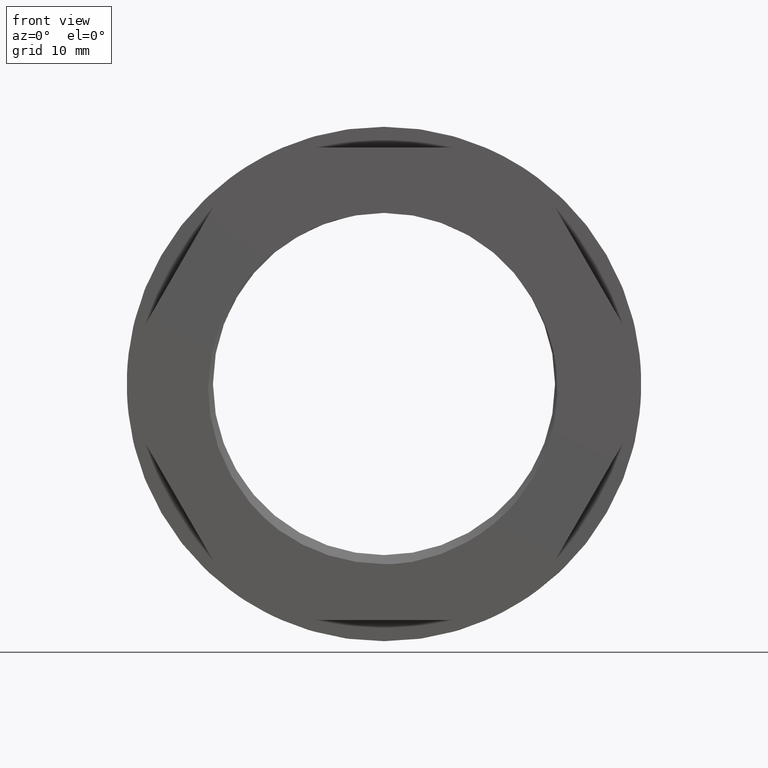
[diagram: clean part render]
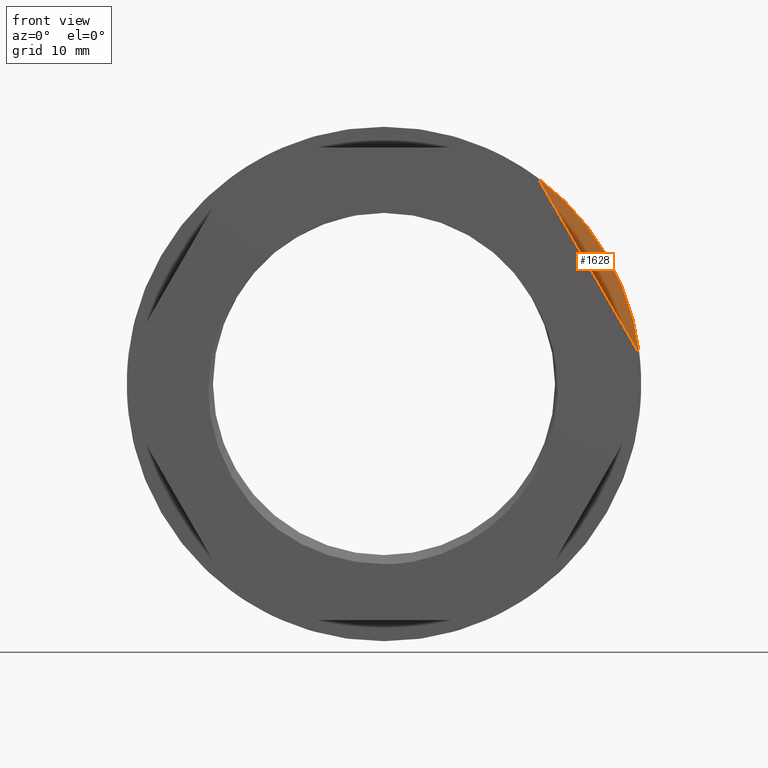
[diagram: same view with one face highlighted and labeled with its STEP entity id]
A machine part, front view. The second image highlights one B-rep face of the part: STEP entity #1628.
In plain terms, the highlighted planar face has unit normal (0, 1, 0).
Its self-contained STEP definition (entity closure, byte-faithful):
#32 = CARTESIAN_POINT ( 'NONE',  ( 22.68993497167887000, -16.80000000000000100, 102.6998798086182900 ) ) ;
#47 = CARTESIAN_POINT ( 'NONE',  ( 13.68313198726753500, -16.80000000000000100, 118.3001201913817100 ) ) ;
#256 = VERTEX_POINT ( 'NONE', #32 ) ;
#307 = VERTEX_POINT ( 'NONE', #47 ) ;
#311 = EDGE_LOOP ( 'NONE', ( #493, #492 ) ) ;
#492 = ORIENTED_EDGE ( 'NONE', *, *, #1586, .F. ) ;
#493 = ORIENTED_EDGE ( 'NONE', *, *, #1672, .F. ) ;
#750 = LINE ( 'NONE', #786, #1775 ) ;
#786 = CARTESIAN_POINT ( 'NONE',  ( 23.28524655239662200, -16.79999999999999700, 101.6687699044810000 ) ) ;
#809 = DIRECTION ( 'NONE',  ( -0.4999999999999998900, 0.0000000000000000000, 0.8660254037844387100 ) ) ;
#1052 = CARTESIAN_POINT ( 'NONE',  ( 0.0000000000000000000, -16.80000000000000100, 79.04999999999999700 ) ) ;
#1059 = PLANE ( 'NONE',  #1717 ) ;
#1075 = FACE_OUTER_BOUND ( 'NONE', #311, .T. ) ;
#1076 = DIRECTION ( 'NONE',  ( 0.0000000000000000000, 1.000000000000000000, 0.0000000000000000000 ) ) ;
#1083 = DIRECTION ( 'NONE',  ( 0.0000000000000000000, -0.0000000000000000000, 1.000000000000000000 ) ) ;
#1440 = CARTESIAN_POINT ( 'NONE',  ( 0.0000000000000000000, -16.80000000000000100, 100.0000000000000000 ) ) ;
#1446 = DIRECTION ( 'NONE',  ( 0.0000000000000000000, 1.000000000000000000, 0.0000000000000000000 ) ) ;
#1451 = DIRECTION ( 'NONE',  ( 0.0000000000000000000, 0.0000000000000000000, 1.000000000000000000 ) ) ;
#1586 = EDGE_CURVE ( 'NONE', #256, #307, #750, .T. ) ;
#1628 = ADVANCED_FACE ( 'NONE', ( #1075 ), #1059, .F. ) ;
#1672 = EDGE_CURVE ( 'NONE', #307, #256, #1742, .T. ) ;
#1717 = AXIS2_PLACEMENT_3D ( 'NONE', #1052, #1076, #1083 ) ;
#1736 = AXIS2_PLACEMENT_3D ( 'NONE', #1440, #1446, #1451 ) ;
#1742 = CIRCLE ( 'NONE', #1736, 22.85000000000000900 ) ;
#1775 = VECTOR ( 'NONE', #809, 1000.000000000000000 ) ;